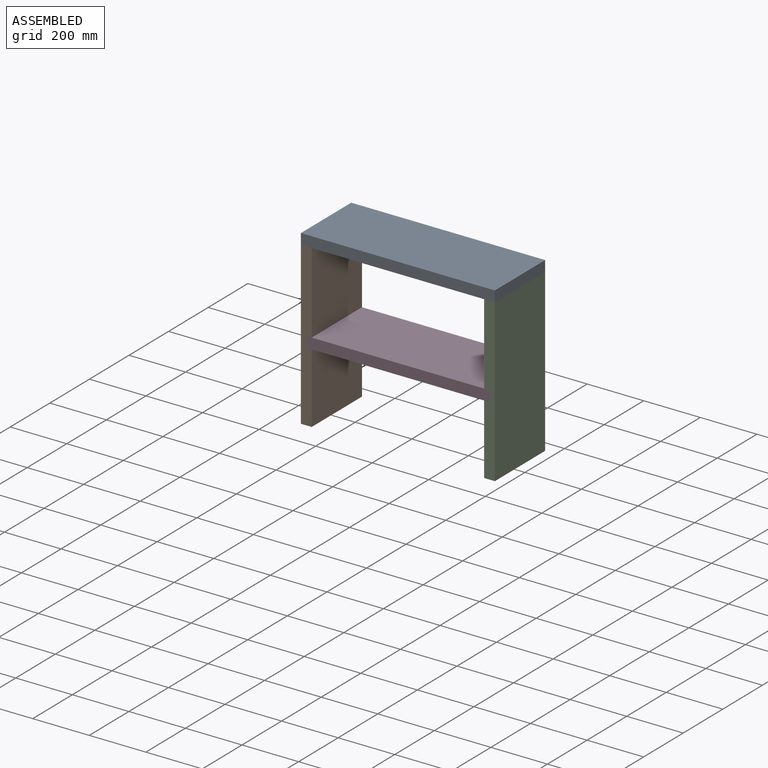
[diagram: assembled view]
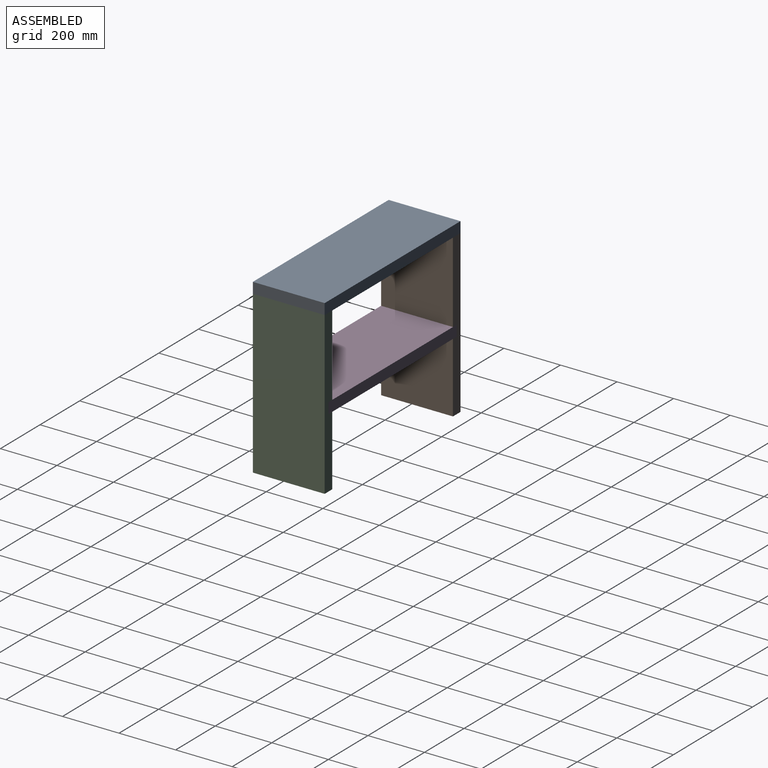
[diagram: assembled view, second angle]
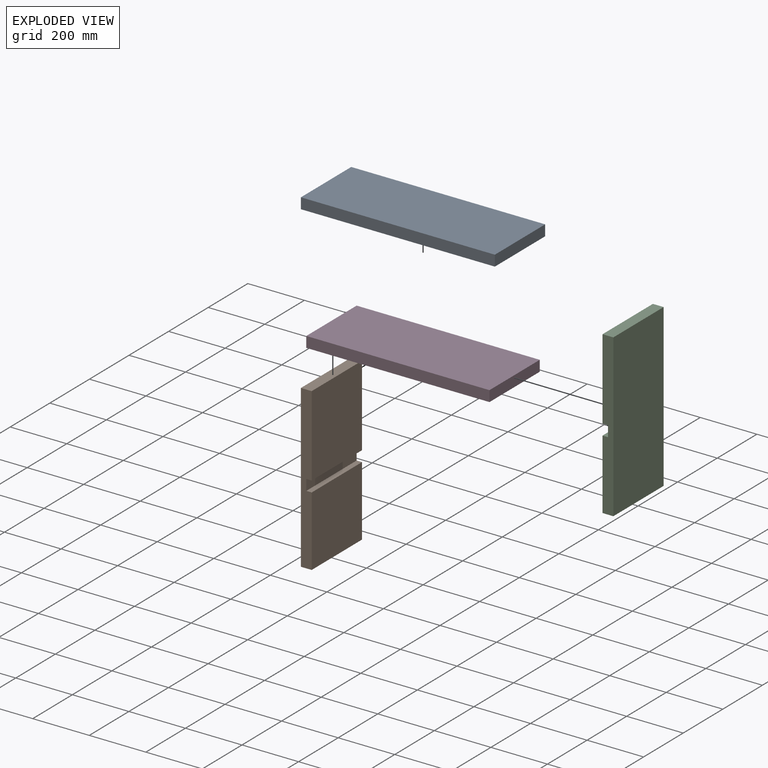
[diagram: exploded view]
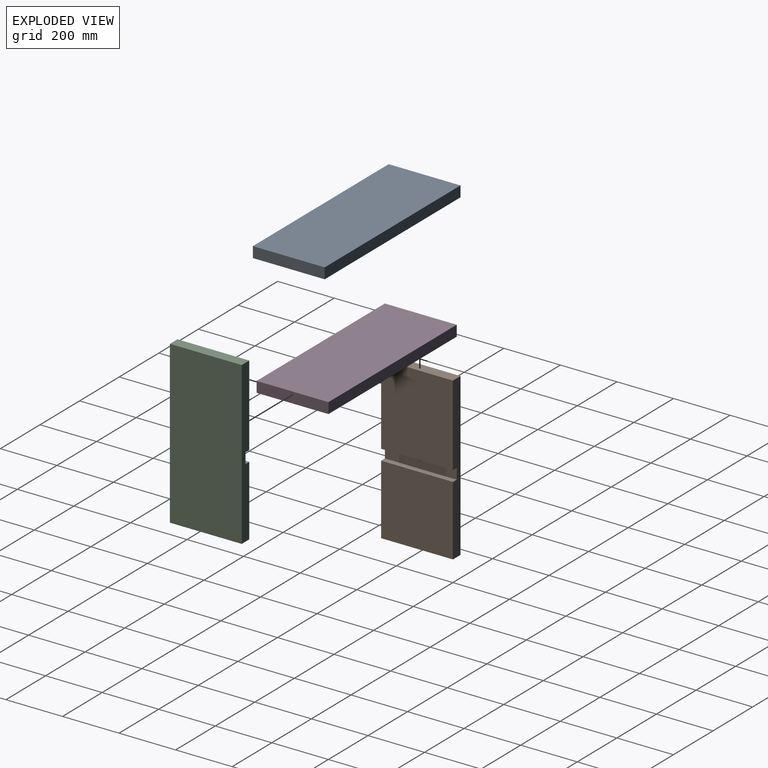
[diagram: exploded view, second angle]
ASSEMBLY  parts=4 mates=2
PART A: 6 faces, bbox 685.8x254x38.1 mm
  f0: plane 685.8x254mm, normal (0,0,-1), area 174193.2mm2, adj f1,f3,f4,f5
  f1: plane 254x38.1mm, normal (1,0,0), area 9677.4mm2, adj f0,f2,f4,f5
  f2: plane 685.8x254mm, normal (0,0,1), area 174193.2mm2, adj f1,f3,f4,f5
  f3: plane 254x38.1mm, normal (-1,0,0), area 9677.4mm2, adj f0,f2,f4,f5
  f4: plane 685.8x38.1mm, normal (0,-1,0), area 26129mm2, adj f0,f1,f2,f3
  f5: plane 685.8x38.1mm, normal (0,1,0), area 26129mm2, adj f0,f1,f2,f3
PART B: 10 faces, bbox 38.1x254x571.5 mm
  f0: plane 254x19.05mm, normal (0,0,-1), area 4838.7mm2, adj f1,f7,f8,f9
  f1: plane 285.75x254mm, normal (1,0,0), area 72580.5mm2, adj f0,f2,f8,f9
  f2: plane 254x38.1mm, normal (0,0,1), area 9677.4mm2, adj f1,f3,f8,f9
  f3: plane 571.5x254mm, normal (-1,0,0), area 145161mm2, adj f2,f4,f8,f9
  f4: plane 254x38.1mm, normal (0,0,-1), area 9677.4mm2, adj f3,f5,f8,f9
  f5: plane 254x247.65mm, normal (1,0,0), area 62903.1mm2, adj f4,f6,f8,f9
  f6: plane 254x19.05mm, normal (0,0,1), area 4838.7mm2, adj f5,f7,f8,f9
  f7: plane 254x38.1mm, normal (1,0,0), area 9677.4mm2, adj f0,f6,f8,f9
  f8: plane 571.5x38.1mm, normal (0,-1,0), area 21048.3mm2, adj f0,f1,f2,f3,f4,f5,f6,f7
  f9: plane 571.5x38.1mm, normal (0,1,0), area 21048.3mm2, adj f0,f1,f2,f3,f4,f5,f6,f7
PART C: 10 faces, bbox 38.1x254x571.5 mm
  f0: plane 285.75x254mm, normal (-1,0,0), area 72580.5mm2, adj f1,f7,f8,f9
  f1: plane 254x19.05mm, normal (0,0,-1), area 4838.7mm2, adj f0,f2,f8,f9
  f2: plane 254x38.1mm, normal (-1,0,0), area 9677.4mm2, adj f1,f3,f8,f9
  f3: plane 254x19.05mm, normal (0,0,1), area 4838.7mm2, adj f2,f4,f8,f9
  f4: plane 254x247.65mm, normal (-1,0,0), area 62903.1mm2, adj f3,f5,f8,f9
  f5: plane 254x38.1mm, normal (0,0,-1), area 9677.4mm2, adj f4,f6,f8,f9
  f6: plane 571.5x254mm, normal (1,0,0), area 145161mm2, adj f5,f7,f8,f9
  f7: plane 254x38.1mm, normal (0,0,1), area 9677.4mm2, adj f0,f6,f8,f9
  f8: plane 571.5x38.1mm, normal (0,-1,0), area 21048.3mm2, adj f0,f1,f2,f3,f4,f5,f6,f7
  f9: plane 571.5x38.1mm, normal (0,1,0), area 21048.3mm2, adj f0,f1,f2,f3,f4,f5,f6,f7
PART D: 6 faces, bbox 647.7x254x38.1 mm
  f0: plane 647.7x254mm, normal (0,0,-1), area 164515.8mm2, adj f1,f3,f4,f5
  f1: plane 254x38.1mm, normal (1,0,0), area 9677.4mm2, adj f0,f2,f4,f5
  f2: plane 647.7x254mm, normal (0,0,1), area 164515.8mm2, adj f1,f3,f4,f5
  f3: plane 254x38.1mm, normal (-1,0,0), area 9677.4mm2, adj f0,f2,f4,f5
  f4: plane 647.7x38.1mm, normal (0,-1,0), area 24677.4mm2, adj f0,f1,f2,f3
  f5: plane 647.7x38.1mm, normal (0,1,0), area 24677.4mm2, adj f0,f1,f2,f3
PLACE A t=(0,0,304.8)mm
PLACE B at identity
PLACE C at identity
PLACE D t=(0,0,-19.05)mm
MATE planar D.f1 <-> C.f2  axis (1,0,0) through (323.85,0,-19.05)mm
MATE planar A.f0 <-> B.f2  axis (0,0,-1) through (-342.9,0,285.75)mm
